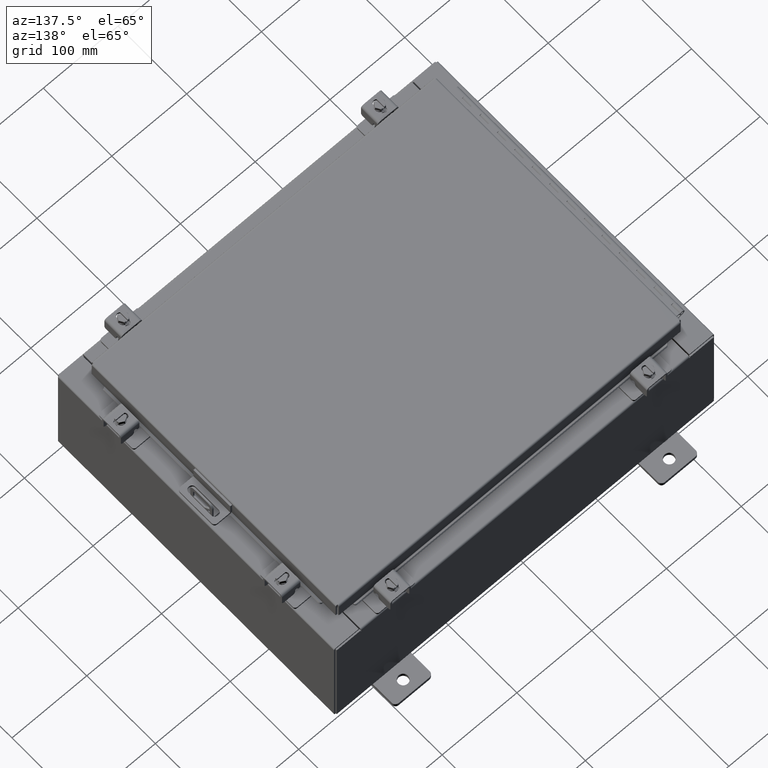
[diagram: clean part render]
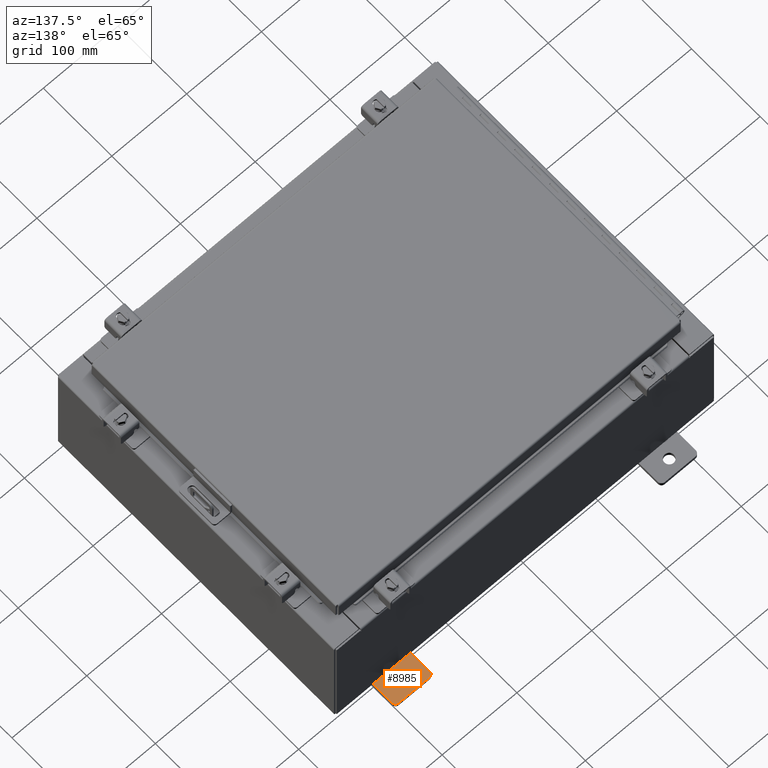
[diagram: same view with one face highlighted and labeled with its STEP entity id]
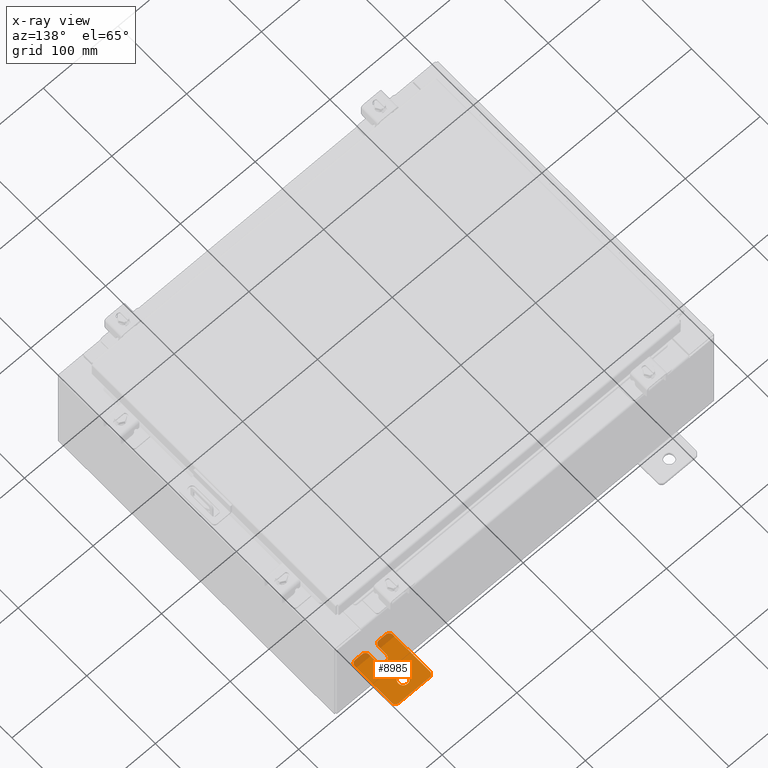
[diagram: x-ray of the same camera — body ghosted, the highlighted face saturated]
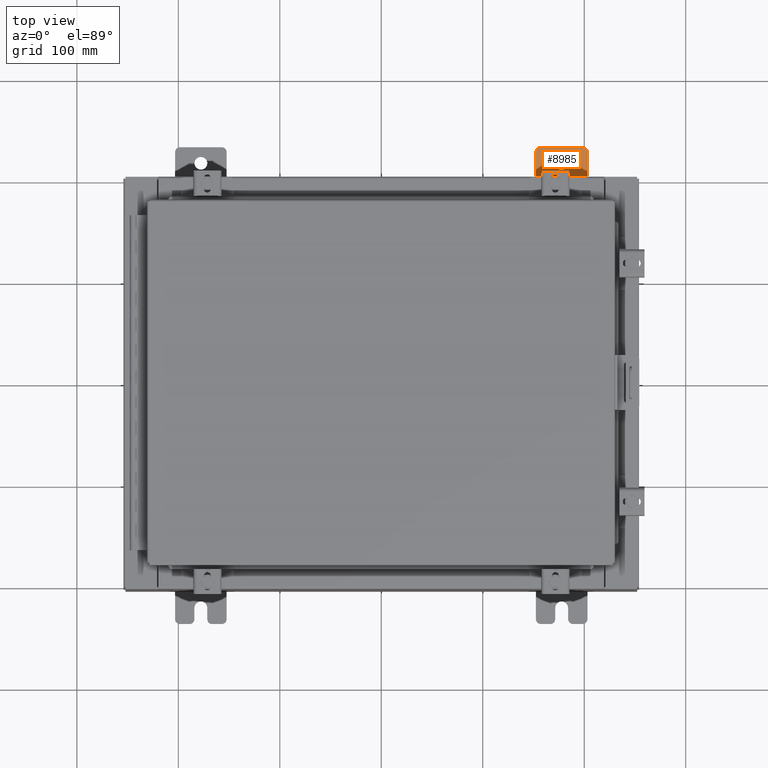
[diagram: same view with one face highlighted and labeled with its STEP entity id]
A machine part, auxiliary view. The second image highlights one B-rep face of the part: STEP entity #8985.
The next image is the same camera in x-ray: the body ghosted, the highlighted face saturated — about 9% of this face is hidden behind the body in this view.
A second angle (top view) of the same face is appended — the face is thin or edge-on in the first view.
In plain terms, the highlighted planar face has unit normal (0, 0, 1).
Its self-contained STEP definition (entity closure, byte-faithful):
#48 = DIRECTION ( 'NONE',  ( 1.000000000000000000, 0.0000000000000000000, -0.0000000000000000000 ) ) ;
#103 = VERTEX_POINT ( 'NONE', #25131 ) ;
#118 = CIRCLE ( 'NONE', #11645, 0.1900000000000011100 ) ;
#291 = DIRECTION ( 'NONE',  ( 0.0000000000000000000, 1.000000000000000000, -1.639108796198558100E-015 ) ) ;
#301 = DIRECTION ( 'NONE',  ( 1.000000000000000000, 0.0000000000000000000, -0.0000000000000000000 ) ) ;
#844 = DIRECTION ( 'NONE',  ( 1.000000000000000000, 0.0000000000000000000, -0.0000000000000000000 ) ) ;
#945 = VERTEX_POINT ( 'NONE', #19145 ) ;
#960 = CARTESIAN_POINT ( 'NONE',  ( 0.0000000000000000000, -0.6249999999999992200, 0.2500000000000005000 ) ) ;
#1217 = CARTESIAN_POINT ( 'NONE',  ( 0.0000000000000000000, -1.060000000000003400, -0.4400000000000005000 ) ) ;
#1465 = DIRECTION ( 'NONE',  ( 1.000000000000000000, 0.0000000000000000000, -0.0000000000000000000 ) ) ;
#1734 = DIRECTION ( 'NONE',  ( 0.0000000000000000000, -1.639108796198553600E-015, -1.000000000000000000 ) ) ;
#1799 = EDGE_CURVE ( 'NONE', #12648, #23464, #9305, .T. ) ;
#1971 = LINE ( 'NONE', #5327, #16796 ) ;
#2236 = DIRECTION ( 'NONE',  ( -6.556435184794182400E-016, -1.000000000000000000, -1.639108796198545600E-016 ) ) ;
#2334 = ORIENTED_EDGE ( 'NONE', *, *, #9056, .T. ) ;
#3235 = DIRECTION ( 'NONE',  ( 0.0000000000000000000, 0.0000000000000000000, -1.000000000000000000 ) ) ;
#3328 = VECTOR ( 'NONE', #12794, 39.37007874015748100 ) ;
#3471 = CARTESIAN_POINT ( 'NONE',  ( 4.168508244714285900E-016, 0.6249999999999992200, 0.2499999999999999200 ) ) ;
#3989 = CIRCLE ( 'NONE', #17484, 0.1900000000000011100 ) ;
#4461 = VERTEX_POINT ( 'NONE', #23723 ) ;
#4491 = ORIENTED_EDGE ( 'NONE', *, *, #15789, .T. ) ;
#4623 = CIRCLE ( 'NONE', #21187, 0.2499999999999999200 ) ;
#4776 = EDGE_CURVE ( 'NONE', #25628, #4461, #3989, .T. ) ;
#4980 = LINE ( 'NONE', #11796, #20462 ) ;
#5008 = EDGE_CURVE ( 'NONE', #945, #16185, #14361, .T. ) ;
#5047 = EDGE_CURVE ( 'NONE', #21748, #7367, #23857, .T. ) ;
#5142 = ORIENTED_EDGE ( 'NONE', *, *, #5899, .F. ) ;
#5151 = CIRCLE ( 'NONE', #22682, 0.1900000000000011100 ) ;
#5152 = DIRECTION ( 'NONE',  ( 1.000000000000000000, -0.0000000000000000000, -5.163192708025532000E-017 ) ) ;
#5161 = CARTESIAN_POINT ( 'NONE',  ( 0.0000000000000000000, 1.059999999999993400, -1.000000000000010000 ) ) ;
#5327 = CARTESIAN_POINT ( 'NONE',  ( 0.0000000000000000000, -1.250000000000002200, 0.9999999999999992200 ) ) ;
#5899 = EDGE_CURVE ( 'NONE', #6858, #18170, #13085, .T. ) ;
#6192 = DIRECTION ( 'NONE',  ( 1.000000000000000000, 0.0000000000000000000, -0.0000000000000000000 ) ) ;
#6272 = AXIS2_PLACEMENT_3D ( 'NONE', #12892, #844, #14921 ) ;
#6404 = ORIENTED_EDGE ( 'NONE', *, *, #15979, .T. ) ;
#6671 = ORIENTED_EDGE ( 'NONE', *, *, #20586, .T. ) ;
#6847 = CARTESIAN_POINT ( 'NONE',  ( 0.0000000000000000000, -1.060000000000002100, 0.4400000000000016700 ) ) ;
#6858 = VERTEX_POINT ( 'NONE', #15177 ) ;
#7245 = DIRECTION ( 'NONE',  ( 0.0000000000000000000, -1.639108796198553600E-015, -1.000000000000000000 ) ) ;
#7367 = VERTEX_POINT ( 'NONE', #5161 ) ;
#7483 = CARTESIAN_POINT ( 'NONE',  ( 1.928684683526964400E-016, -1.060000000000003400, -0.2499999999999994400 ) ) ;
#7582 = ORIENTED_EDGE ( 'NONE', *, *, #4776, .T. ) ;
#7747 = VECTOR ( 'NONE', #291, 39.37007874015748100 ) ;
#7799 = EDGE_CURVE ( 'NONE', #16185, #16524, #11352, .T. ) ;
#7925 = DIRECTION ( 'NONE',  ( 1.000000000000000000, -0.0000000000000000000, -5.163192708025532000E-017 ) ) ;
#7968 = ORIENTED_EDGE ( 'NONE', *, *, #23702, .T. ) ;
#8052 = DIRECTION ( 'NONE',  ( -1.000000000000000000, 6.523827964459549700E-016, 5.163192708025532000E-017 ) ) ;
#8309 = PLANE ( 'NONE',  #19084 ) ;
#8441 = ORIENTED_EDGE ( 'NONE', *, *, #1799, .T. ) ;
#8474 = CARTESIAN_POINT ( 'NONE',  ( 0.0000000000000000000, -1.060000000000001200, 0.9999999999999988900 ) ) ;
#8488 = CARTESIAN_POINT ( 'NONE',  ( 0.0000000000000000000, 1.249999999999997600, 0.9999999999999951200 ) ) ;
#8662 = ORIENTED_EDGE ( 'NONE', *, *, #13532, .T. ) ;
#8701 = AXIS2_PLACEMENT_3D ( 'NONE', #20041, #7925, #22071 ) ;
#8845 = AXIS2_PLACEMENT_3D ( 'NONE', #18276, #6192, #20312 ) ;
#8853 = DIRECTION ( 'NONE',  ( 0.0000000000000000000, 0.0000000000000000000, -1.000000000000000000 ) ) ;
#8985 = ADVANCED_FACE ( 'NONE', ( #25104, #14349 ), #8309, .T. ) ;
#9056 = EDGE_CURVE ( 'NONE', #13662, #945, #12443, .T. ) ;
#9305 = LINE ( 'NONE', #15870, #3328 ) ;
#9847 = ORIENTED_EDGE ( 'NONE', *, *, #9921, .T. ) ;
#9921 = EDGE_CURVE ( 'NONE', #7367, #13662, #118, .T. ) ;
#9980 = ORIENTED_EDGE ( 'NONE', *, *, #5047, .T. ) ;
#10121 = CARTESIAN_POINT ( 'NONE',  ( 0.0000000000000000000, -1.250000000000005300, -0.8100000000000047200 ) ) ;
#10349 = EDGE_CURVE ( 'NONE', #4461, #12716, #1971, .T. ) ;
#10473 = ORIENTED_EDGE ( 'NONE', *, *, #24979, .F. ) ;
#11352 = LINE ( 'NONE', #8488, #15425 ) ;
#11535 = CARTESIAN_POINT ( 'NONE',  ( 0.0000000000000000000, -1.060000000000004500, -1.000000000000006400 ) ) ;
#11645 = AXIS2_PLACEMENT_3D ( 'NONE', #12134, #48, #14156 ) ;
#11796 = CARTESIAN_POINT ( 'NONE',  ( 0.0000000000000000000, -1.250000000000002200, 0.9999999999999992200 ) ) ;
#12002 = CARTESIAN_POINT ( 'NONE',  ( 1.928684683526972300E-016, -1.060000000000002100, 0.2500000000000005000 ) ) ;
#12134 = CARTESIAN_POINT ( 'NONE',  ( 0.0000000000000000000, 1.059999999999993600, -0.8100000000000089400 ) ) ;
#12443 = LINE ( 'NONE', #24733, #13075 ) ;
#12470 = ORIENTED_EDGE ( 'NONE', *, *, #5008, .T. ) ;
#12648 = VERTEX_POINT ( 'NONE', #12002 ) ;
#12716 = VERTEX_POINT ( 'NONE', #10121 ) ;
#12794 = DIRECTION ( 'NONE',  ( 6.556435184794182400E-016, 1.000000000000000000, 0.0000000000000000000 ) ) ;
#12892 = CARTESIAN_POINT ( 'NONE',  ( 0.0000000000000000000, -1.060000000000001600, 0.8099999999999978300 ) ) ;
#12946 = ORIENTED_EDGE ( 'NONE', *, *, #7799, .T. ) ;
#13075 = VECTOR ( 'NONE', #16596, 39.37007874015748100 ) ;
#13085 = CIRCLE ( 'NONE', #20583, 0.2499999999999999200 ) ;
#13532 = EDGE_CURVE ( 'NONE', #18319, #12648, #18453, .T. ) ;
#13533 = CARTESIAN_POINT ( 'NONE',  ( 0.0000000000000000000, -1.060000000000004100, -0.8100000000000050500 ) ) ;
#13662 = VERTEX_POINT ( 'NONE', #17685 ) ;
#14156 = DIRECTION ( 'NONE',  ( 0.0000000000000000000, 0.0000000000000000000, -1.000000000000000000 ) ) ;
#14349 = FACE_OUTER_BOUND ( 'NONE', #24898, .T. ) ;
#14361 = CIRCLE ( 'NONE', #8845, 0.1900000000000011100 ) ;
#14390 = DIRECTION ( 'NONE',  ( -0.0000000000000000000, 0.0000000000000000000, -1.000000000000000000 ) ) ;
#14921 = DIRECTION ( 'NONE',  ( 0.0000000000000000000, 0.0000000000000000000, -1.000000000000000000 ) ) ;
#15177 = CARTESIAN_POINT ( 'NONE',  ( 3.910348609313009100E-016, 0.6249999999999992200, -0.2499999999999999200 ) ) ;
#15317 = DIRECTION ( 'NONE',  ( 1.000000000000000000, 0.0000000000000000000, -0.0000000000000000000 ) ) ;
#15425 = VECTOR ( 'NONE', #22630, 39.37007874015748100 ) ;
#15435 = LINE ( 'NONE', #16359, #24935 ) ;
#15564 = DIRECTION ( 'NONE',  ( 0.0000000000000000000, 0.0000000000000000000, -1.000000000000000000 ) ) ;
#15789 = EDGE_CURVE ( 'NONE', #103, #25628, #15435, .T. ) ;
#15870 = CARTESIAN_POINT ( 'NONE',  ( 6.829619984160658000E-017, -1.250000000000003800, 0.2500000000000005000 ) ) ;
#15979 = EDGE_CURVE ( 'NONE', #16524, #22478, #21764, .T. ) ;
#16185 = VERTEX_POINT ( 'NONE', #17580 ) ;
#16359 = CARTESIAN_POINT ( 'NONE',  ( 4.780733988912460100E-016, -0.6249999999999993300, -0.2499999999999993900 ) ) ;
#16399 = CARTESIAN_POINT ( 'NONE',  ( 0.0000000000000000000, -1.250000000000005600, -1.000000000000006200 ) ) ;
#16524 = VERTEX_POINT ( 'NONE', #8474 ) ;
#16596 = DIRECTION ( 'NONE',  ( 0.0000000000000000000, 1.639108796198553600E-015, 1.000000000000000000 ) ) ;
#16796 = VECTOR ( 'NONE', #7245, 39.37007874015748100 ) ;
#17214 = CIRCLE ( 'NONE', #8701, 0.2499999999999999200 ) ;
#17229 = CARTESIAN_POINT ( 'NONE',  ( 4.039428427013647300E-016, 0.6249999999999992200, -9.783840404509077400E-018 ) ) ;
#17484 = AXIS2_PLACEMENT_3D ( 'NONE', #1217, #15317, #3235 ) ;
#17580 = CARTESIAN_POINT ( 'NONE',  ( 0.0000000000000000000, 1.059999999999996500, 0.9999999999999953400 ) ) ;
#17685 = CARTESIAN_POINT ( 'NONE',  ( 0.0000000000000000000, 1.249999999999994700, -0.8100000000000092700 ) ) ;
#18170 = VERTEX_POINT ( 'NONE', #3471 ) ;
#18276 = CARTESIAN_POINT ( 'NONE',  ( 0.0000000000000000000, 1.059999999999996300, 0.8099999999999938400 ) ) ;
#18319 = VERTEX_POINT ( 'NONE', #22094 ) ;
#18334 = EDGE_CURVE ( 'NONE', #23464, #103, #4623, .T. ) ;
#18453 = CIRCLE ( 'NONE', #24849, 0.1900000000000011400 ) ;
#19084 = AXIS2_PLACEMENT_3D ( 'NONE', #22371, #301, #14390 ) ;
#19104 = CARTESIAN_POINT ( 'NONE',  ( 0.0000000000000000000, -1.250000000000002400, 0.8099999999999980500 ) ) ;
#19145 = CARTESIAN_POINT ( 'NONE',  ( 0.0000000000000000000, 1.249999999999997300, 0.8099999999999935000 ) ) ;
#19259 = DIRECTION ( 'NONE',  ( -5.163192708025533800E-017, 0.0000000000000000000, -1.000000000000000000 ) ) ;
#19588 = ORIENTED_EDGE ( 'NONE', *, *, #10349, .T. ) ;
#20041 = CARTESIAN_POINT ( 'NONE',  ( 4.039428427013647300E-016, 0.6249999999999992200, -9.783840404509077400E-018 ) ) ;
#20153 = CARTESIAN_POINT ( 'NONE',  ( 4.780733988912460100E-016, -0.6249999999999993300, 5.858939755051854500E-017 ) ) ;
#20312 = DIRECTION ( 'NONE',  ( 0.0000000000000000000, 0.0000000000000000000, -1.000000000000000000 ) ) ;
#20462 = VECTOR ( 'NONE', #1734, 39.37007874015748100 ) ;
#20583 = AXIS2_PLACEMENT_3D ( 'NONE', #17229, #5152, #19259 ) ;
#20586 = EDGE_CURVE ( 'NONE', #12716, #21748, #5151, .T. ) ;
#20990 = DIRECTION ( 'NONE',  ( 1.000000000000000000, 0.0000000000000000000, -0.0000000000000000000 ) ) ;
#21187 = AXIS2_PLACEMENT_3D ( 'NONE', #20153, #8052, #22177 ) ;
#21443 = ORIENTED_EDGE ( 'NONE', *, *, #18334, .T. ) ;
#21545 = EDGE_LOOP ( 'NONE', ( #5142, #10473 ) ) ;
#21748 = VERTEX_POINT ( 'NONE', #11535 ) ;
#21764 = CIRCLE ( 'NONE', #6272, 0.1900000000000011100 ) ;
#22071 = DIRECTION ( 'NONE',  ( -5.163192708025533800E-017, 0.0000000000000000000, -1.000000000000000000 ) ) ;
#22094 = CARTESIAN_POINT ( 'NONE',  ( 0.0000000000000000000, -1.250000000000003100, 0.4400000000000020000 ) ) ;
#22177 = DIRECTION ( 'NONE',  ( -6.523827964459551700E-016, -1.000000000000000000, 0.0000000000000000000 ) ) ;
#22371 = CARTESIAN_POINT ( 'NONE',  ( 0.0000000000000000000, 0.0000000000000000000, 0.0000000000000000000 ) ) ;
#22478 = VERTEX_POINT ( 'NONE', #19104 ) ;
#22630 = DIRECTION ( 'NONE',  ( 0.0000000000000000000, -1.000000000000000000, 1.639108796198558100E-015 ) ) ;
#22682 = AXIS2_PLACEMENT_3D ( 'NONE', #13533, #1465, #15564 ) ;
#23464 = VERTEX_POINT ( 'NONE', #960 ) ;
#23702 = EDGE_CURVE ( 'NONE', #22478, #18319, #4980, .T. ) ;
#23723 = CARTESIAN_POINT ( 'NONE',  ( 0.0000000000000000000, -1.250000000000004700, -0.4400000000000002200 ) ) ;
#23857 = LINE ( 'NONE', #16399, #7747 ) ;
#24733 = CARTESIAN_POINT ( 'NONE',  ( 0.0000000000000000000, 1.249999999999994200, -1.000000000000010400 ) ) ;
#24849 = AXIS2_PLACEMENT_3D ( 'NONE', #6847, #20990, #8853 ) ;
#24898 = EDGE_LOOP ( 'NONE', ( #12946, #6404, #7968, #8662, #8441, #21443, #4491, #7582, #19588, #6671, #9980, #9847, #2334, #12470 ) ) ;
#24935 = VECTOR ( 'NONE', #2236, 39.37007874015748100 ) ;
#24979 = EDGE_CURVE ( 'NONE', #18170, #6858, #17214, .T. ) ;
#25104 = FACE_BOUND ( 'NONE', #21545, .T. ) ;
#25131 = CARTESIAN_POINT ( 'NONE',  ( 4.780733988912460100E-016, -0.6249999999999993300, -0.2499999999999998600 ) ) ;
#25628 = VERTEX_POINT ( 'NONE', #7483 ) ;